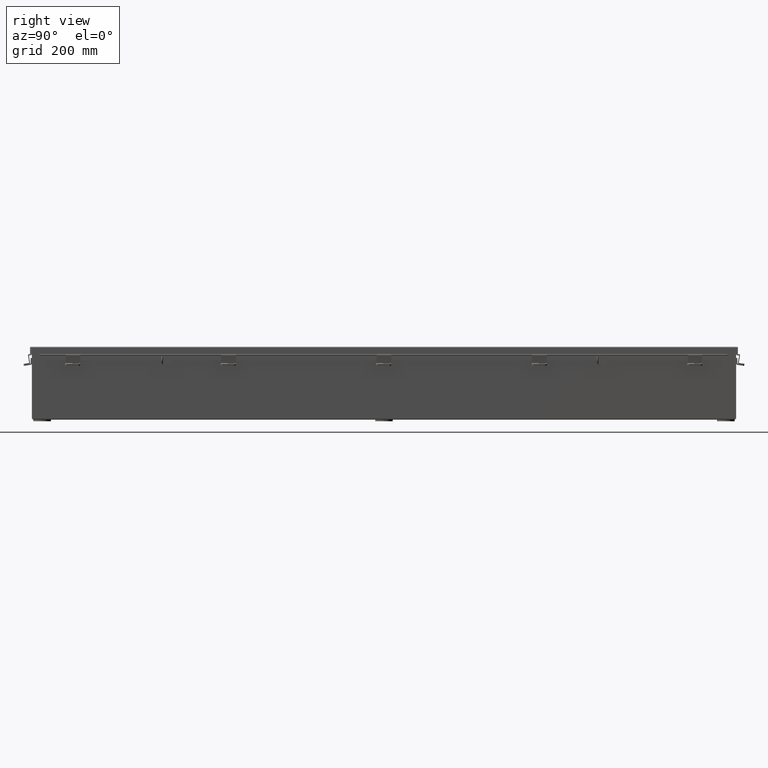
[diagram: clean part render]
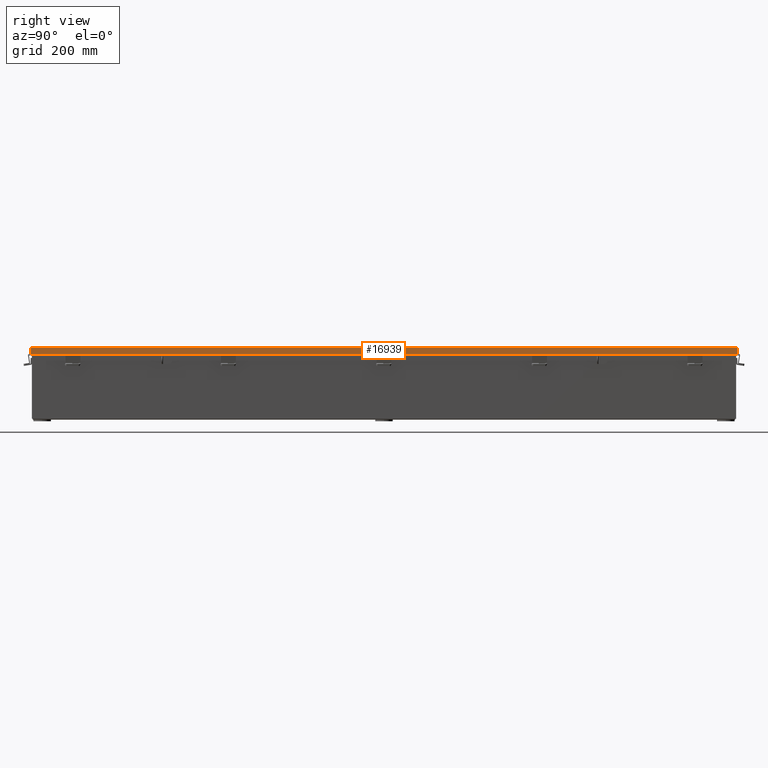
[diagram: same view with one face highlighted and labeled with its STEP entity id]
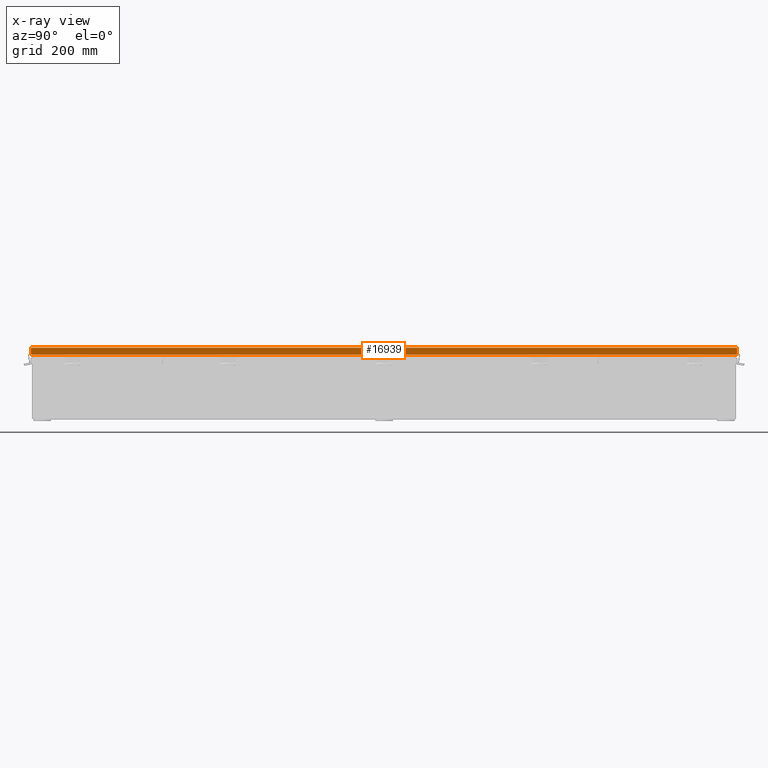
[diagram: x-ray of the same camera — body ghosted, the highlighted face saturated]
A machine part, right view. The second image highlights one B-rep face of the part: STEP entity #16939.
The next image is the same camera in x-ray: the body ghosted, the highlighted face saturated — about 0% of this face is hidden behind the body in this view.
In plain terms, the highlighted planar face has unit normal (-1, 0, -0).
Its self-contained STEP definition (entity closure, byte-faithful):
#77 = VERTEX_POINT ( 'NONE', #15509 ) ;
#3498 = DIRECTION ( 'NONE',  ( 3.569293475308526100E-015, -8.497511063427586500E-029, -1.000000000000000000 ) ) ;
#3796 = ORIENTED_EDGE ( 'NONE', *, *, #9225, .F. ) ;
#4566 = VERTEX_POINT ( 'NONE', #30173 ) ;
#4689 = ORIENTED_EDGE ( 'NONE', *, *, #29204, .F. ) ;
#5702 = CARTESIAN_POINT ( 'NONE',  ( -3.156250000000002200, -30.07447893218813900, 0.01299999999999792100 ) ) ;
#6422 = VERTEX_POINT ( 'NONE', #22623 ) ;
#7207 = VECTOR ( 'NONE', #14666, 39.37007874015748100 ) ;
#7296 = LINE ( 'NONE', #9753, #25201 ) ;
#7410 = EDGE_CURVE ( 'NONE', #10923, #35200, #9458, .T. ) ;
#7600 = ORIENTED_EDGE ( 'NONE', *, *, #7988, .F. ) ;
#7988 = EDGE_CURVE ( 'NONE', #43023, #4566, #22632, .T. ) ;
#8249 = ORIENTED_EDGE ( 'NONE', *, *, #27808, .T. ) ;
#8904 = LINE ( 'NONE', #14764, #25744 ) ;
#8991 = CARTESIAN_POINT ( 'NONE',  ( -3.156249999999998200, -29.32447893218813900, 0.5967115427318772100 ) ) ;
#9225 = EDGE_CURVE ( 'NONE', #19885, #77, #9897, .T. ) ;
#9458 = LINE ( 'NONE', #24065, #26292 ) ;
#9492 = DIRECTION ( 'NONE',  ( 2.803970088048163700E-013, -2.803970088048163700E-013, -1.000000000000000000 ) ) ;
#9753 = CARTESIAN_POINT ( 'NONE',  ( -3.156249999999999600, 0.0000000000000000000, 0.6122999999999994000 ) ) ;
#9897 = LINE ( 'NONE', #33014, #35671 ) ;
#10140 = PLANE ( 'NONE',  #29783 ) ;
#10923 = VERTEX_POINT ( 'NONE', #13288 ) ;
#12783 = DIRECTION ( 'NONE',  ( -3.569293475308526100E-015, 8.497511063427586500E-029, 1.000000000000000000 ) ) ;
#13288 = CARTESIAN_POINT ( 'NONE',  ( -3.156250000000002200, 30.07447893218812900, 0.01299999999999901400 ) ) ;
#13882 = ORIENTED_EDGE ( 'NONE', *, *, #14059, .T. ) ;
#14059 = EDGE_CURVE ( 'NONE', #14485, #6422, #33247, .T. ) ;
#14485 = VERTEX_POINT ( 'NONE', #5702 ) ;
#14666 = DIRECTION ( 'NONE',  ( 1.419850353612258400E-028, 1.000000000000000000, 8.519697776386927500E-029 ) ) ;
#14764 = CARTESIAN_POINT ( 'NONE',  ( -3.156249999999998200, 29.32447893218812900, 0.5967115427318749900 ) ) ;
#15412 = ORIENTED_EDGE ( 'NONE', *, *, #27512, .F. ) ;
#15509 = CARTESIAN_POINT ( 'NONE',  ( -3.156249999999999600, 29.32447893218812500, 0.5967115427318749900 ) ) ;
#16939 = ADVANCED_FACE ( 'NONE', ( #30435 ), #10140, .F. ) ;
#17218 = LINE ( 'NONE', #18033, #7207 ) ;
#18033 = CARTESIAN_POINT ( 'NONE',  ( -3.156249999999999600, 0.0000000000000000000, 0.6122999999999994000 ) ) ;
#18144 = DIRECTION ( 'NONE',  ( -1.419850353612258400E-028, -1.000000000000000000, -8.519697776386927500E-029 ) ) ;
#18374 = EDGE_LOOP ( 'NONE', ( #3796, #36943, #37006, #4689, #13882, #8249, #7600, #15412 ) ) ;
#18862 = CARTESIAN_POINT ( 'NONE',  ( -3.156249999999999600, 29.32447893218812900, 0.6122999999999994000 ) ) ;
#19885 = VERTEX_POINT ( 'NONE', #18862 ) ;
#20284 = CARTESIAN_POINT ( 'NONE',  ( -3.156250000000002200, 0.0000000000000000000, -1.202013117212275700E-014 ) ) ;
#22623 = CARTESIAN_POINT ( 'NONE',  ( -3.156249999999999600, -30.07447893218813900, 0.6122999999999994000 ) ) ;
#22632 = LINE ( 'NONE', #8991, #42635 ) ;
#23685 = DIRECTION ( 'NONE',  ( 1.000000000000000000, 1.419891414227271000E-028, 3.569293475308526100E-015 ) ) ;
#24063 = DIRECTION ( 'NONE',  ( 1.418969549183933800E-028, 1.000000000000000000, 2.717693340855870500E-017 ) ) ;
#24065 = CARTESIAN_POINT ( 'NONE',  ( -3.156250000000002200, 30.07447893218812900, 0.0000000000000000000 ) ) ;
#25201 = VECTOR ( 'NONE', #36659, 39.37007874015748100 ) ;
#25744 = VECTOR ( 'NONE', #18144, 39.37007874015748100 ) ;
#26292 = VECTOR ( 'NONE', #34192, 39.37007874015748100 ) ;
#27512 = EDGE_CURVE ( 'NONE', #77, #43023, #8904, .T. ) ;
#27808 = EDGE_CURVE ( 'NONE', #6422, #4566, #7296, .T. ) ;
#28747 = EDGE_CURVE ( 'NONE', #19885, #35200, #17218, .T. ) ;
#29204 = EDGE_CURVE ( 'NONE', #14485, #10923, #31915, .T. ) ;
#29724 = CARTESIAN_POINT ( 'NONE',  ( -3.156250000000002200, -30.07447893218813600, -1.202013117212275700E-014 ) ) ;
#29783 = AXIS2_PLACEMENT_3D ( 'NONE', #20284, #23685, #3498 ) ;
#30173 = CARTESIAN_POINT ( 'NONE',  ( -3.156249999999999600, -29.32447893218813900, 0.6123000000000015100 ) ) ;
#30435 = FACE_OUTER_BOUND ( 'NONE', #18374, .T. ) ;
#30812 = CARTESIAN_POINT ( 'NONE',  ( -3.156250000000002200, 30.15624999999999600, 0.01300000000000010700 ) ) ;
#31915 = LINE ( 'NONE', #30812, #40855 ) ;
#32190 = VECTOR ( 'NONE', #12783, 39.37007874015748100 ) ;
#33014 = CARTESIAN_POINT ( 'NONE',  ( -3.156250000000002700, 29.32447893218812900, 0.6122999999999971800 ) ) ;
#33247 = LINE ( 'NONE', #29724, #32190 ) ;
#34192 = DIRECTION ( 'NONE',  ( -3.569293475308526100E-015, 8.497511063427586500E-029, 1.000000000000000000 ) ) ;
#35200 = VERTEX_POINT ( 'NONE', #37348 ) ;
#35671 = VECTOR ( 'NONE', #9492, 39.37007874015748100 ) ;
#35902 = DIRECTION ( 'NONE',  ( -7.009925220119580100E-014, 8.519697776386927500E-029, 1.000000000000000000 ) ) ;
#36659 = DIRECTION ( 'NONE',  ( 1.419850353612258400E-028, 1.000000000000000000, 8.519697776386927500E-029 ) ) ;
#36943 = ORIENTED_EDGE ( 'NONE', *, *, #28747, .T. ) ;
#37006 = ORIENTED_EDGE ( 'NONE', *, *, #7410, .F. ) ;
#37348 = CARTESIAN_POINT ( 'NONE',  ( -3.156249999999999600, 30.07447893218812900, 0.6123000000000005100 ) ) ;
#37585 = CARTESIAN_POINT ( 'NONE',  ( -3.156249999999999600, -29.32447893218813900, 0.5967115427318772100 ) ) ;
#40855 = VECTOR ( 'NONE', #24063, 39.37007874015748100 ) ;
#42635 = VECTOR ( 'NONE', #35902, 39.37007874015748100 ) ;
#43023 = VERTEX_POINT ( 'NONE', #37585 ) ;